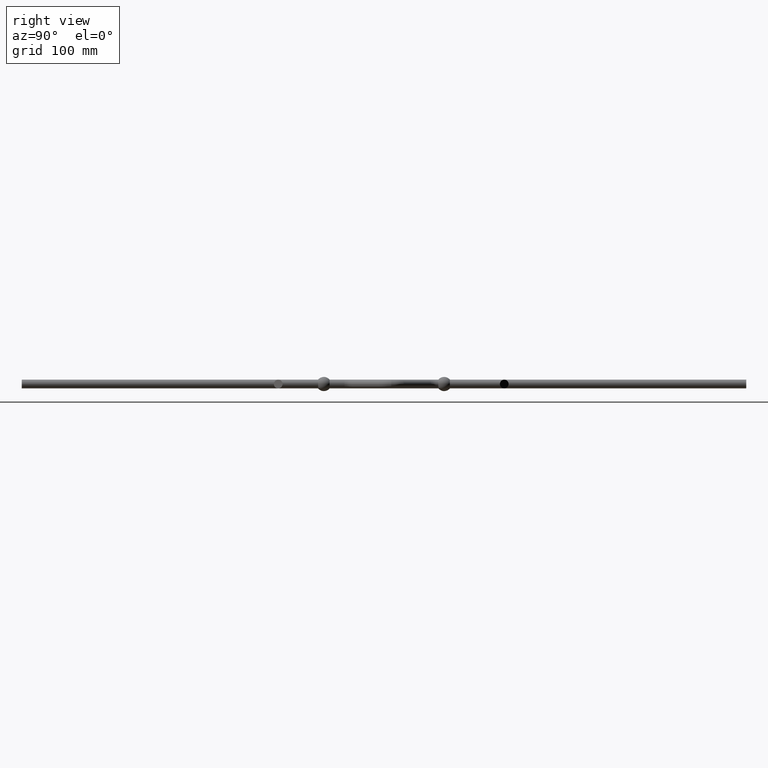
[diagram: clean part render]
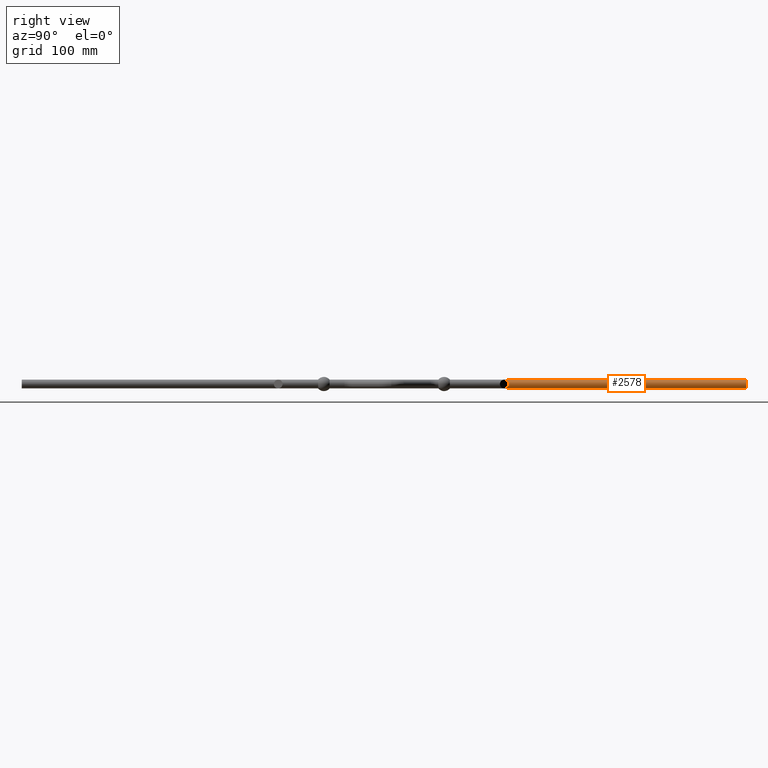
[diagram: same view with one face highlighted and labeled with its STEP entity id]
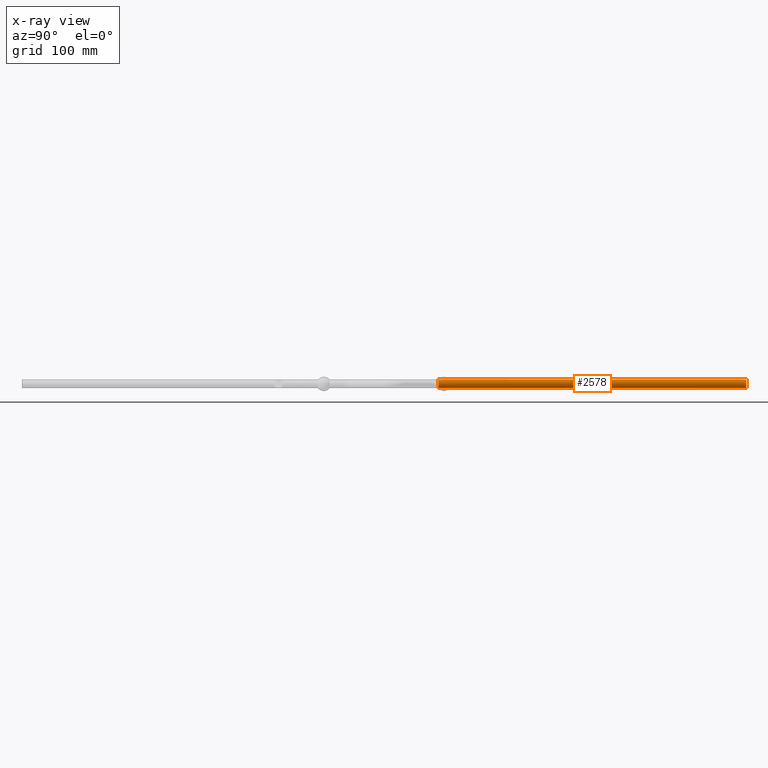
[diagram: x-ray of the same camera — body ghosted, the highlighted face saturated]
A machine part, right view. The second image highlights one B-rep face of the part: STEP entity #2578.
The next image is the same camera in x-ray: the body ghosted, the highlighted face saturated — about 0% of this face is hidden behind the body in this view.
In plain terms, the highlighted cylindrical surface (edge-blend (fillet) strip) has radius 6 mm, axis along (-0, -1, -0).
Its self-contained STEP definition (entity closure, byte-faithful):
#860 = CARTESIAN_POINT ( 'NONE',  ( 7.347880794884048700E-016, 575.0000000000000000, 5.999999999999943200 ) ) ;
#1028 = VERTEX_POINT ( 'NONE', #860 ) ;
#1280 = EDGE_CURVE ( 'NONE', #14684, #1648, #6618, .T. ) ;
#1369 = EDGE_CURVE ( 'NONE', #1028, #1648, #6814, .T. ) ;
#1648 = VERTEX_POINT ( 'NONE', #11711 ) ;
#2336 = DIRECTION ( 'NONE',  ( -0.0000000000000000000, -1.000000000000000000, -0.0000000000000000000 ) ) ;
#2364 = ORIENTED_EDGE ( 'NONE', *, *, #15797, .F. ) ;
#2421 = EDGE_LOOP ( 'NONE', ( #2364, #5753, #15852, #4197 ) ) ;
#2578 = ADVANCED_FACE ( 'NONE', ( #14376 ), #5810, .T. ) ;
#2716 = CARTESIAN_POINT ( 'NONE',  ( 0.0000000000000000000, 1000.000000000000000, 0.0000000000000000000 ) ) ;
#3000 = AXIS2_PLACEMENT_3D ( 'NONE', #9511, #8192, #10751 ) ;
#3538 = CARTESIAN_POINT ( 'NONE',  ( 7.347880794884048700E-016, 1000.000000000000000, 5.999999999999943200 ) ) ;
#4197 = ORIENTED_EDGE ( 'NONE', *, *, #1280, .F. ) ;
#5373 = DIRECTION ( 'NONE',  ( 0.0000000000000000000, 0.0000000000000000000, 1.000000000000000000 ) ) ;
#5753 = ORIENTED_EDGE ( 'NONE', *, *, #14014, .T. ) ;
#5810 = CYLINDRICAL_SURFACE ( 'NONE', #6015, 5.999999999999943200 ) ;
#5865 = CIRCLE ( 'NONE', #16056, 5.999999999999943200 ) ;
#6015 = AXIS2_PLACEMENT_3D ( 'NONE', #10254, #13886, #10357 ) ;
#6214 = VECTOR ( 'NONE', #7990, 1000.000000000000000 ) ;
#6618 = LINE ( 'NONE', #11696, #6214 ) ;
#6814 = CIRCLE ( 'NONE', #3000, 5.999999999999943200 ) ;
#7990 = DIRECTION ( 'NONE',  ( -0.0000000000000000000, -1.000000000000000000, -0.0000000000000000000 ) ) ;
#8192 = DIRECTION ( 'NONE',  ( 0.0000000000000000000, 1.000000000000000000, 0.0000000000000000000 ) ) ;
#8420 = CARTESIAN_POINT ( 'NONE',  ( 7.347880794884048700E-016, 1000.000000000000000, 5.999999999999943200 ) ) ;
#9511 = CARTESIAN_POINT ( 'NONE',  ( 0.0000000000000000000, 575.0000000000000000, 0.0000000000000000000 ) ) ;
#10254 = CARTESIAN_POINT ( 'NONE',  ( 0.0000000000000000000, 1000.000000000000000, 0.0000000000000000000 ) ) ;
#10357 = DIRECTION ( 'NONE',  ( 0.0000000000000000000, 0.0000000000000000000, -1.000000000000000000 ) ) ;
#10751 = DIRECTION ( 'NONE',  ( 0.0000000000000000000, 0.0000000000000000000, 1.000000000000000000 ) ) ;
#11696 = CARTESIAN_POINT ( 'NONE',  ( 0.0000000000000000000, 1000.000000000000000, -5.999999999999943200 ) ) ;
#11711 = CARTESIAN_POINT ( 'NONE',  ( 0.0000000000000000000, 575.0000000000000000, -5.999999999999943200 ) ) ;
#12172 = VERTEX_POINT ( 'NONE', #8420 ) ;
#12508 = LINE ( 'NONE', #3538, #14629 ) ;
#13886 = DIRECTION ( 'NONE',  ( -0.0000000000000000000, -1.000000000000000000, -0.0000000000000000000 ) ) ;
#14014 = EDGE_CURVE ( 'NONE', #12172, #1028, #12508, .T. ) ;
#14068 = CARTESIAN_POINT ( 'NONE',  ( 0.0000000000000000000, 1000.000000000000000, -5.999999999999943200 ) ) ;
#14376 = FACE_OUTER_BOUND ( 'NONE', #2421, .T. ) ;
#14629 = VECTOR ( 'NONE', #2336, 1000.000000000000000 ) ;
#14684 = VERTEX_POINT ( 'NONE', #14068 ) ;
#15160 = DIRECTION ( 'NONE',  ( 0.0000000000000000000, 1.000000000000000000, 0.0000000000000000000 ) ) ;
#15797 = EDGE_CURVE ( 'NONE', #12172, #14684, #5865, .T. ) ;
#15852 = ORIENTED_EDGE ( 'NONE', *, *, #1369, .T. ) ;
#16056 = AXIS2_PLACEMENT_3D ( 'NONE', #2716, #15160, #5373 ) ;